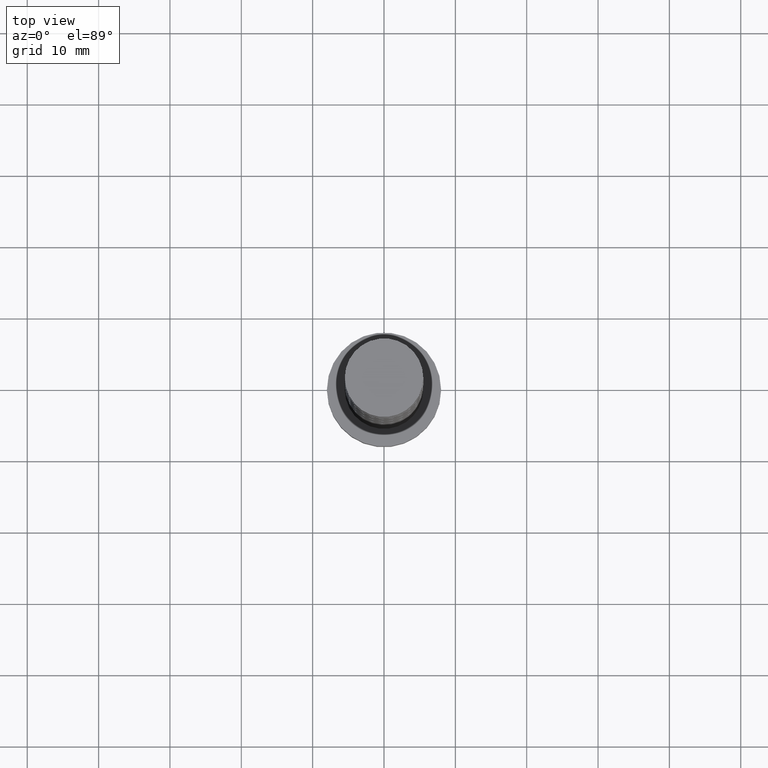
[diagram: clean part render]
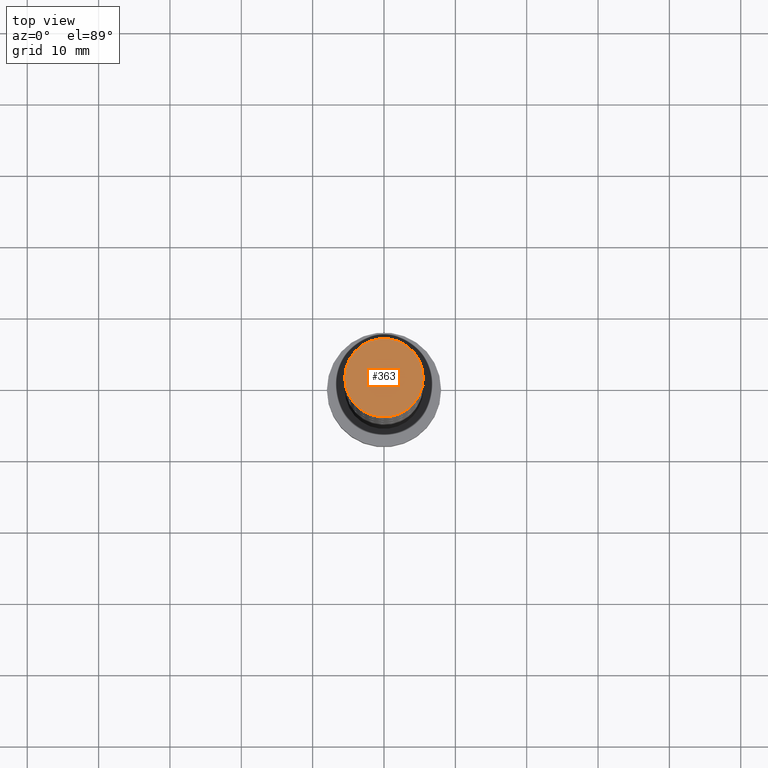
[diagram: same view with one face highlighted and labeled with its STEP entity id]
A machine part, top view. The second image highlights one B-rep face of the part: STEP entity #363.
In plain terms, the highlighted planar face has unit normal (0, 0, 1).
Its self-contained STEP definition (entity closure, byte-faithful):
#131 = VERTEX_POINT ( 'NONE', #529 ) ;
#135 = CIRCLE ( 'NONE', #1130, 5.500000000000000000 ) ;
#174 = ORIENTED_EDGE ( 'NONE', *, *, #1457, .T. ) ;
#181 = AXIS2_PLACEMENT_3D ( 'NONE', #288, #1413, #1056 ) ;
#288 = CARTESIAN_POINT ( 'NONE',  ( 0.000000000000000000, 0.000000000000000000, 100.0000000000000000 ) ) ;
#363 = ADVANCED_FACE ( 'NONE', ( #1186 ), #949, .T. ) ;
#364 = CARTESIAN_POINT ( 'NONE',  ( 0.000000000000000000, 0.000000000000000000, 100.0000000000000000 ) ) ;
#529 = CARTESIAN_POINT ( 'NONE',  ( 5.500000000000000000, 6.735557395310442023E-16, 100.0000000000000000 ) ) ;
#711 = AXIS2_PLACEMENT_3D ( 'NONE', #364, #822, #1276 ) ;
#786 = DIRECTION ( 'NONE',  ( 0.000000000000000000, 0.000000000000000000, 1.000000000000000000 ) ) ;
#822 = DIRECTION ( 'NONE',  ( 0.000000000000000000, 0.000000000000000000, 1.000000000000000000 ) ) ;
#908 = DIRECTION ( 'NONE',  ( 1.000000000000000000, 0.000000000000000000, 0.000000000000000000 ) ) ;
#949 = PLANE ( 'NONE',  #181 ) ;
#984 = EDGE_LOOP ( 'NONE', ( #1407, #174 ) ) ;
#1056 = DIRECTION ( 'NONE',  ( 1.000000000000000000, 0.000000000000000000, -0.000000000000000000 ) ) ;
#1127 = CARTESIAN_POINT ( 'NONE',  ( 0.000000000000000000, 0.000000000000000000, 100.0000000000000000 ) ) ;
#1130 = AXIS2_PLACEMENT_3D ( 'NONE', #1127, #786, #908 ) ;
#1133 = EDGE_CURVE ( 'NONE', #1430, #131, #1205, .T. ) ;
#1186 = FACE_OUTER_BOUND ( 'NONE', #984, .T. ) ;
#1205 = CIRCLE ( 'NONE', #711, 5.500000000000000000 ) ;
#1276 = DIRECTION ( 'NONE',  ( 1.000000000000000000, 0.000000000000000000, 0.000000000000000000 ) ) ;
#1386 = CARTESIAN_POINT ( 'NONE',  ( -5.500000000000000000, 0.000000000000000000, 100.0000000000000000 ) ) ;
#1407 = ORIENTED_EDGE ( 'NONE', *, *, #1133, .T. ) ;
#1413 = DIRECTION ( 'NONE',  ( 0.000000000000000000, 0.000000000000000000, 1.000000000000000000 ) ) ;
#1430 = VERTEX_POINT ( 'NONE', #1386 ) ;
#1457 = EDGE_CURVE ( 'NONE', #131, #1430, #135, .T. ) ;